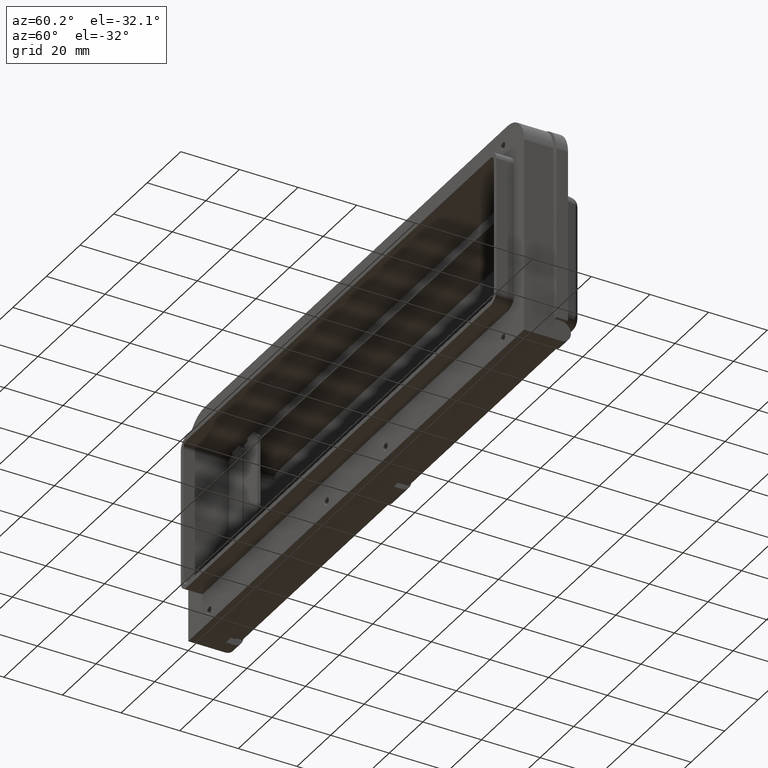
[diagram: clean part render]
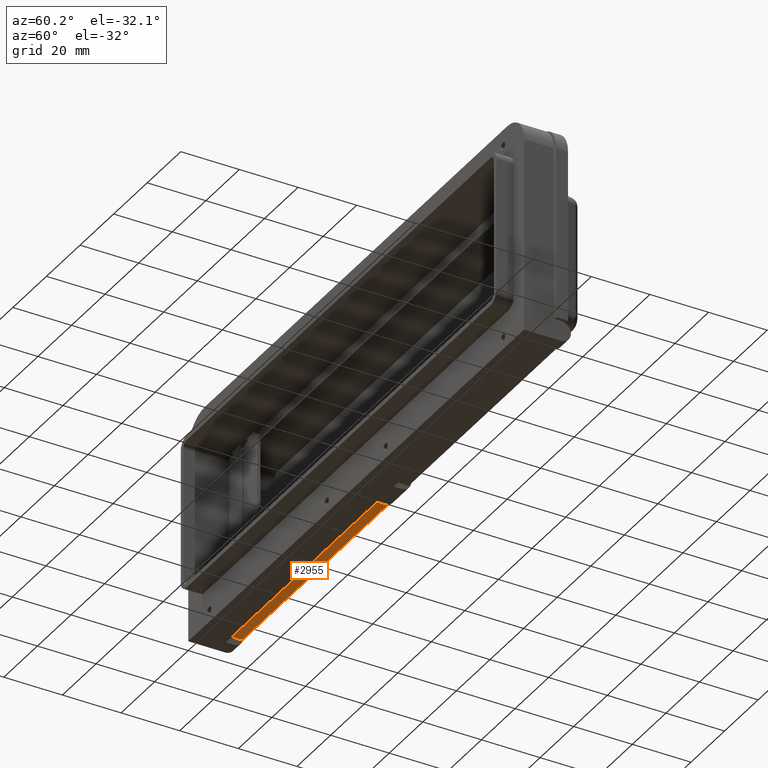
[diagram: same view with one face highlighted and labeled with its STEP entity id]
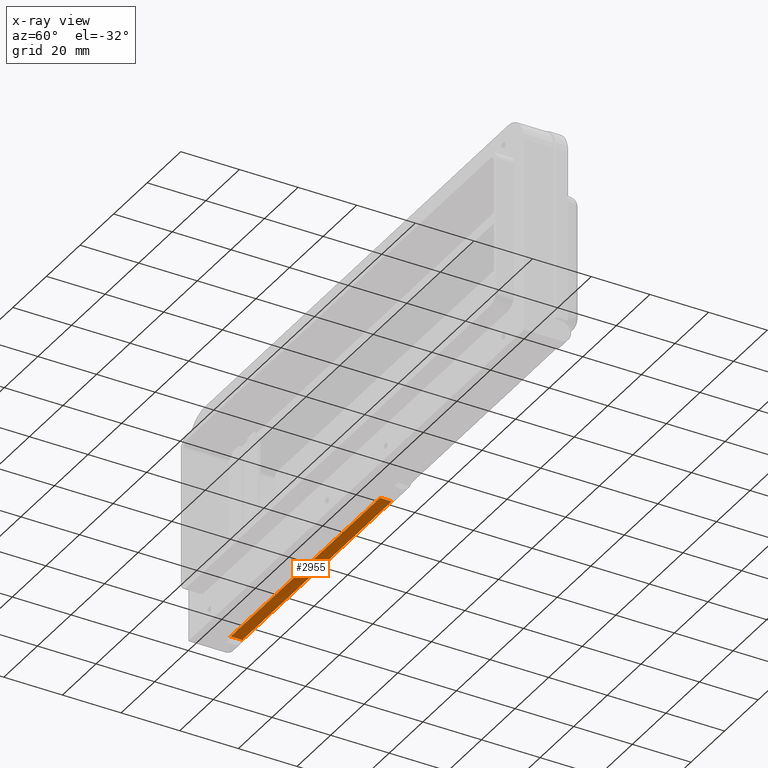
[diagram: x-ray of the same camera — body ghosted, the highlighted face saturated]
A machine part, auxiliary view. The second image highlights one B-rep face of the part: STEP entity #2955.
The next image is the same camera in x-ray: the body ghosted, the highlighted face saturated — about 0% of this face is hidden behind the body in this view.
In plain terms, the highlighted planar face has unit normal (0, -0, 1).
Its self-contained STEP definition (entity closure, byte-faithful):
#176 = VERTEX_POINT ( 'NONE', #4858 ) ;
#209 = VERTEX_POINT ( 'NONE', #4938 ) ;
#334 = VERTEX_POINT ( 'NONE', #5541 ) ;
#336 = EDGE_CURVE ( 'NONE', #337, #334, #5536, .T. ) ;
#337 = VERTEX_POINT ( 'NONE', #5531 ) ;
#536 = EDGE_CURVE ( 'NONE', #176, #209, #1296, .T. ) ;
#1293 = DIRECTION ( 'NONE',  ( -1.000000000000000000, 0.0000000000000000000, 0.0000000000000000000 ) ) ;
#1294 = VECTOR ( 'NONE', #1293, 1000.000000000000000 ) ;
#1295 = CARTESIAN_POINT ( 'NONE',  ( 94.00000000000008500, 15.00000000000000000, -36.45000000000000300 ) ) ;
#1296 = LINE ( 'NONE', #1295, #1294 ) ;
#2955 = ADVANCED_FACE ( 'NONE', ( #7960 ), #7999, .F. ) ;
#2958 = EDGE_LOOP ( 'NONE', ( #2959, #2960, #2961, #2962 ) ) ;
#2959 = ORIENTED_EDGE ( 'NONE', *, *, #536, .F. ) ;
#2960 = ORIENTED_EDGE ( 'NONE', *, *, #8621, .T. ) ;
#2961 = ORIENTED_EDGE ( 'NONE', *, *, #336, .T. ) ;
#2962 = ORIENTED_EDGE ( 'NONE', *, *, #2963, .F. ) ;
#2963 = EDGE_CURVE ( 'NONE', #209, #334, #7994, .T. ) ;
#4858 = CARTESIAN_POINT ( 'NONE',  ( -5.000000000000000000, 15.00000000000000000, -36.45000000000000300 ) ) ;
#4938 = CARTESIAN_POINT ( 'NONE',  ( -94.00000000000008500, 15.00000000000000000, -36.45000000000000300 ) ) ;
#5531 = CARTESIAN_POINT ( 'NONE',  ( -5.000000000000000000, 11.00000000000000000, -36.45000000000000300 ) ) ;
#5533 = DIRECTION ( 'NONE',  ( -1.000000000000000000, 0.0000000000000000000, 0.0000000000000000000 ) ) ;
#5534 = VECTOR ( 'NONE', #5533, 1000.000000000000000 ) ;
#5535 = CARTESIAN_POINT ( 'NONE',  ( 94.00000000000008500, 11.00000000000000000, -36.45000000000000300 ) ) ;
#5536 = LINE ( 'NONE', #5535, #5534 ) ;
#5541 = CARTESIAN_POINT ( 'NONE',  ( -94.00000000000008500, 11.00000000000000000, -36.45000000000000300 ) ) ;
#7499 = DIRECTION ( 'NONE',  ( 0.0000000000000000000, -1.000000000000000000, -0.0000000000000000000 ) ) ;
#7500 = VECTOR ( 'NONE', #7499, 1000.000000000000000 ) ;
#7501 = CARTESIAN_POINT ( 'NONE',  ( -5.000000000000000000, 12.49999999999999600, -36.45000000000000300 ) ) ;
#7502 = LINE ( 'NONE', #7501, #7500 ) ;
#7960 = FACE_OUTER_BOUND ( 'NONE', #2958, .T. ) ;
#7991 = DIRECTION ( 'NONE',  ( -0.0000000000000000000, -1.000000000000000000, -0.0000000000000000000 ) ) ;
#7992 = VECTOR ( 'NONE', #7991, 1000.000000000000000 ) ;
#7993 = CARTESIAN_POINT ( 'NONE',  ( -94.00000000000008500, 15.00000000000000000, -36.45000000000000300 ) ) ;
#7994 = LINE ( 'NONE', #7993, #7992 ) ;
#7995 = DIRECTION ( 'NONE',  ( 1.000000000000000000, 0.0000000000000000000, -0.0000000000000000000 ) ) ;
#7996 = DIRECTION ( 'NONE',  ( 0.0000000000000000000, -0.0000000000000000000, 1.000000000000000000 ) ) ;
#7997 = CARTESIAN_POINT ( 'NONE',  ( 94.00000000000008500, 15.00000000000000000, -36.45000000000000300 ) ) ;
#7998 = AXIS2_PLACEMENT_3D ( 'NONE', #7997, #7996, #7995 ) ;
#7999 = PLANE ( 'NONE',  #7998 ) ;
#8621 = EDGE_CURVE ( 'NONE', #176, #337, #7502, .T. ) ;